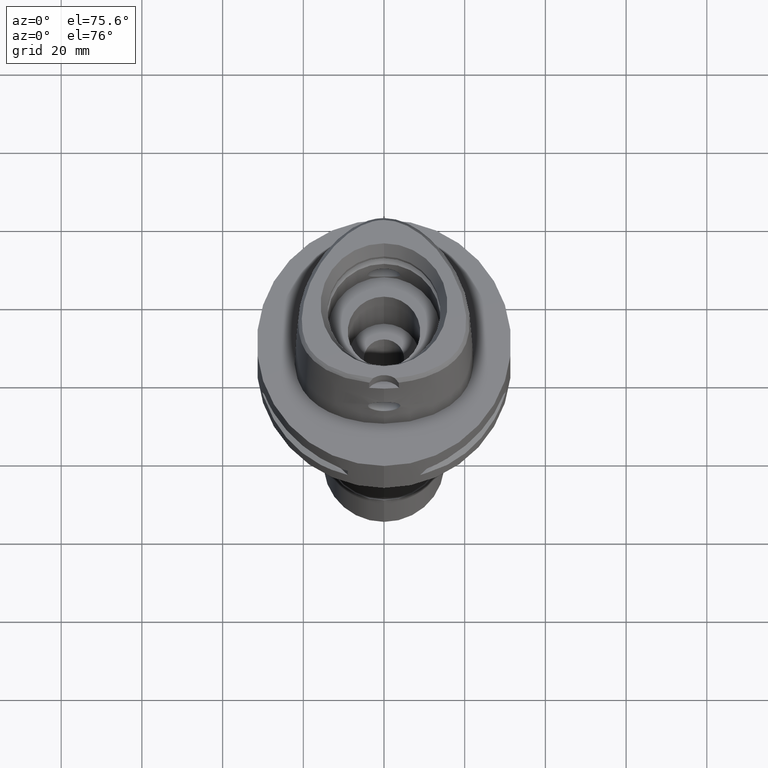
[diagram: clean part render]
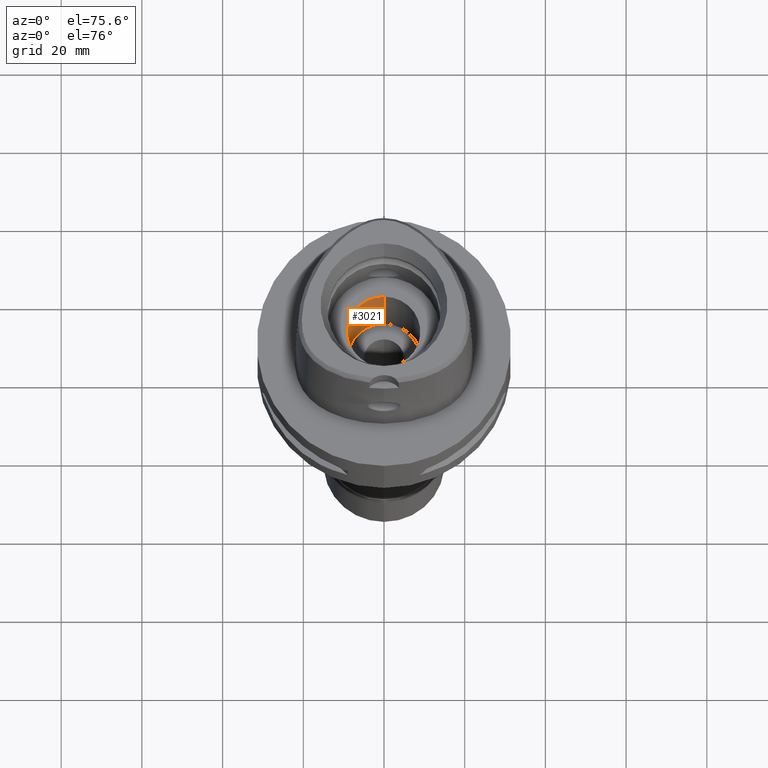
[diagram: same view with one face highlighted and labeled with its STEP entity id]
A machine part, auxiliary view. The second image highlights one B-rep face of the part: STEP entity #3021.
In plain terms, the highlighted cylindrical surface (edge-blend (fillet) strip) has radius 9 mm, axis along (0, 0, -1).
Its self-contained STEP definition (entity closure, byte-faithful):
#87 = AXIS2_PLACEMENT_3D ( 'NONE', #1628, #2402, #2425 ) ;
#117 = CARTESIAN_POINT ( 'NONE',  ( 0.0000000000000000000, 9.000000000000000000, 11.00000000000000000 ) ) ;
#421 = VECTOR ( 'NONE', #4116, 1000.000000000000000 ) ;
#676 = VECTOR ( 'NONE', #3332, 1000.000000000000000 ) ;
#831 = VERTEX_POINT ( 'NONE', #117 ) ;
#879 = CARTESIAN_POINT ( 'NONE',  ( 0.0000000000000000000, -9.000000000000000000, -16.00000000000000000 ) ) ;
#903 = AXIS2_PLACEMENT_3D ( 'NONE', #3234, #1241, #1196 ) ;
#1196 = DIRECTION ( 'NONE',  ( 0.0000000000000000000, 1.000000000000000000, 0.0000000000000000000 ) ) ;
#1241 = DIRECTION ( 'NONE',  ( 0.0000000000000000000, 0.0000000000000000000, 1.000000000000000000 ) ) ;
#1564 = ORIENTED_EDGE ( 'NONE', *, *, #1582, .T. ) ;
#1582 = EDGE_CURVE ( 'NONE', #3253, #831, #4931, .T. ) ;
#1621 = CYLINDRICAL_SURFACE ( 'NONE', #3739, 9.000000000000000000 ) ;
#1628 = CARTESIAN_POINT ( 'NONE',  ( 0.0000000000000000000, 0.0000000000000000000, -16.00000000000000000 ) ) ;
#1915 = CIRCLE ( 'NONE', #87, 9.000000000000000000 ) ;
#2151 = EDGE_CURVE ( 'NONE', #3586, #3253, #1915, .T. ) ;
#2188 = CARTESIAN_POINT ( 'NONE',  ( 0.0000000000000000000, 9.000000000000000000, -16.00000000000000000 ) ) ;
#2402 = DIRECTION ( 'NONE',  ( 0.0000000000000000000, 0.0000000000000000000, -1.000000000000000000 ) ) ;
#2425 = DIRECTION ( 'NONE',  ( 0.0000000000000000000, -1.000000000000000000, 0.0000000000000000000 ) ) ;
#2567 = CARTESIAN_POINT ( 'NONE',  ( 0.0000000000000000000, -9.000000000000000000, 11.00000000000000000 ) ) ;
#2635 = CIRCLE ( 'NONE', #903, 9.000000000000000000 ) ;
#2823 = DIRECTION ( 'NONE',  ( 0.0000000000000000000, -1.000000000000000000, 0.0000000000000000000 ) ) ;
#2929 = LINE ( 'NONE', #2567, #676 ) ;
#3014 = ORIENTED_EDGE ( 'NONE', *, *, #4771, .T. ) ;
#3021 = ADVANCED_FACE ( 'NONE', ( #3946 ), #1621, .F. ) ;
#3058 = ORIENTED_EDGE ( 'NONE', *, *, #2151, .T. ) ;
#3179 = EDGE_CURVE ( 'NONE', #4893, #3586, #2929, .T. ) ;
#3189 = DIRECTION ( 'NONE',  ( 0.0000000000000000000, 0.0000000000000000000, -1.000000000000000000 ) ) ;
#3234 = CARTESIAN_POINT ( 'NONE',  ( 0.0000000000000000000, 0.0000000000000000000, 11.00000000000000000 ) ) ;
#3253 = VERTEX_POINT ( 'NONE', #4576 ) ;
#3332 = DIRECTION ( 'NONE',  ( 0.0000000000000000000, 0.0000000000000000000, -1.000000000000000000 ) ) ;
#3459 = ORIENTED_EDGE ( 'NONE', *, *, #3179, .T. ) ;
#3586 = VERTEX_POINT ( 'NONE', #879 ) ;
#3739 = AXIS2_PLACEMENT_3D ( 'NONE', #4834, #3189, #2823 ) ;
#3946 = FACE_OUTER_BOUND ( 'NONE', #5079, .T. ) ;
#4093 = CARTESIAN_POINT ( 'NONE',  ( 0.0000000000000000000, -9.000000000000000000, 11.00000000000000000 ) ) ;
#4116 = DIRECTION ( 'NONE',  ( 0.0000000000000000000, 0.0000000000000000000, 1.000000000000000000 ) ) ;
#4576 = CARTESIAN_POINT ( 'NONE',  ( 0.0000000000000000000, 9.000000000000000000, -16.00000000000000000 ) ) ;
#4771 = EDGE_CURVE ( 'NONE', #831, #4893, #2635, .T. ) ;
#4834 = CARTESIAN_POINT ( 'NONE',  ( 0.0000000000000000000, 0.0000000000000000000, 39.89999999999999858 ) ) ;
#4893 = VERTEX_POINT ( 'NONE', #4093 ) ;
#4931 = LINE ( 'NONE', #2188, #421 ) ;
#5079 = EDGE_LOOP ( 'NONE', ( #3014, #3459, #3058, #1564 ) ) ;